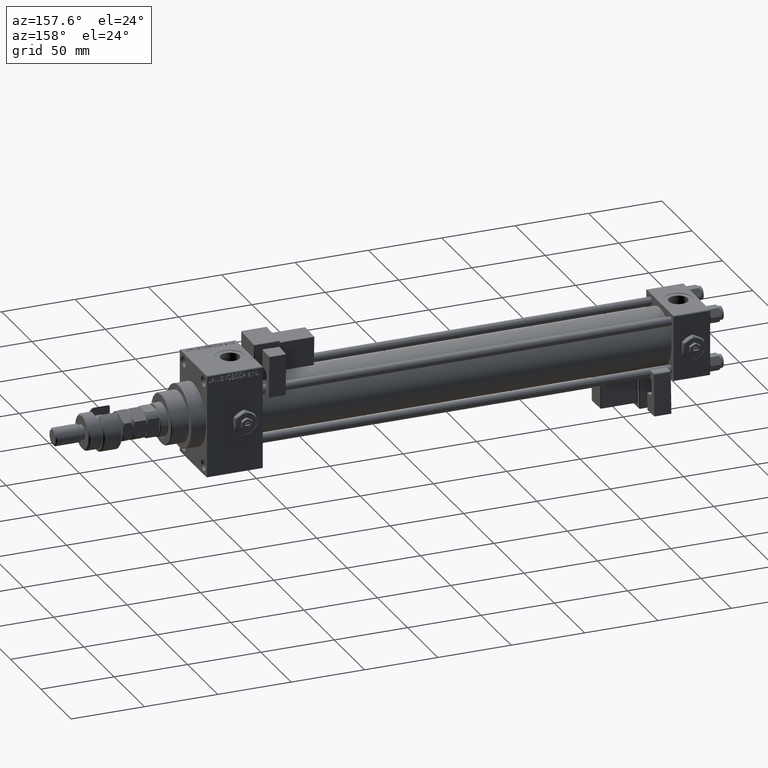
[diagram: clean part render]
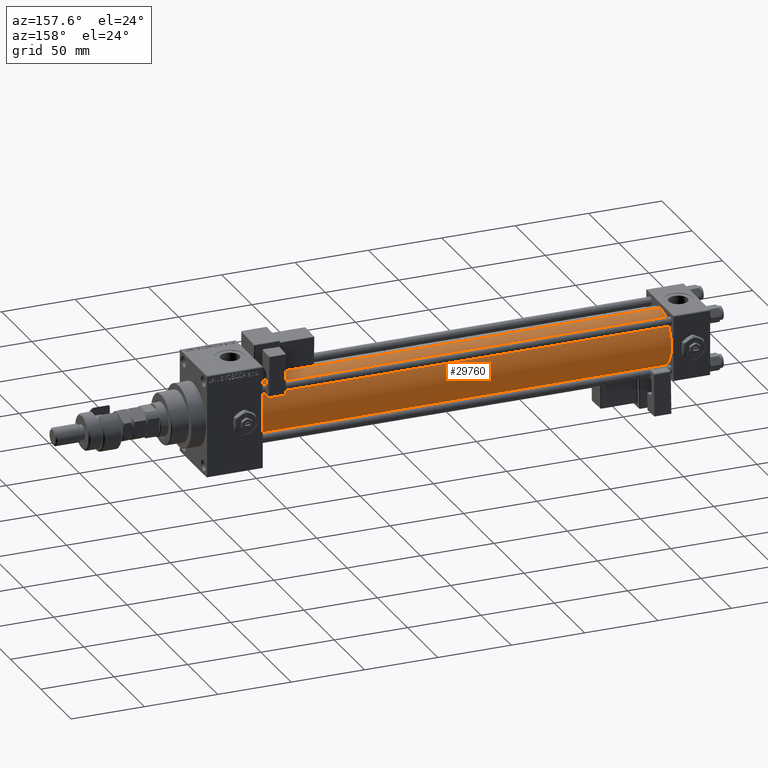
[diagram: same view with one face highlighted and labeled with its STEP entity id]
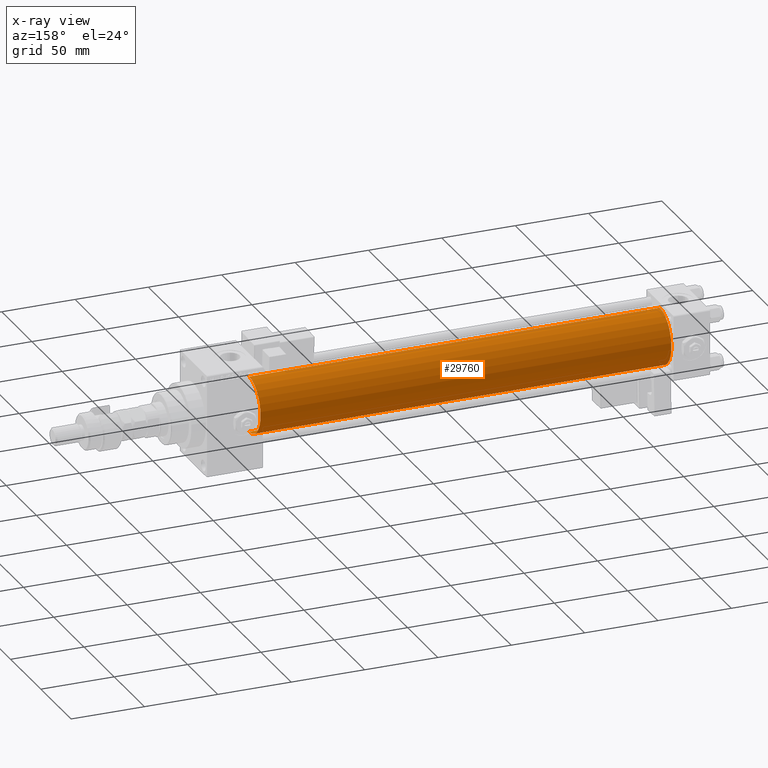
[diagram: x-ray of the same camera — body ghosted, the highlighted face saturated]
A machine part, auxiliary view. The second image highlights one B-rep face of the part: STEP entity #29760.
The next image is the same camera in x-ray: the body ghosted, the highlighted face saturated — about 0% of this face is hidden behind the body in this view.
In plain terms, the highlighted cylindrical surface (edge-blend (fillet) strip) has radius 19 mm, axis along (-1, -0, -0).
Its self-contained STEP definition (entity closure, byte-faithful):
#160 = EDGE_CURVE ( 'NONE', #4835, #32636, #41612, .T. ) ;
#1316 = EDGE_LOOP ( 'NONE', ( #28936, #52557, #18638, #28544 ) ) ;
#2820 = DIRECTION ( 'NONE',  ( 0.000000000000000000, 0.000000000000000000, 1.000000000000000000 ) ) ;
#3035 = CARTESIAN_POINT ( 'NONE',  ( 25.00000000000002132, -2.752562955852396712E-16, -19.00000000000000000 ) ) ;
#3146 = CARTESIAN_POINT ( 'NONE',  ( 305.0000000000000568, -2.752562955852396712E-16, -19.00000000000000000 ) ) ;
#4835 = VERTEX_POINT ( 'NONE', #11828 ) ;
#6826 = AXIS2_PLACEMENT_3D ( 'NONE', #44454, #40346, #2820 ) ;
#9437 = EDGE_CURVE ( 'NONE', #53385, #53187, #20166, .T. ) ;
#11256 = CARTESIAN_POINT ( 'NONE',  ( 305.0000000000000568, -2.602085213965210642E-15, 19.00000000000000000 ) ) ;
#11828 = CARTESIAN_POINT ( 'NONE',  ( 305.0000000000000568, -2.752562955852396712E-16, -19.00000000000000000 ) ) ;
#13861 = VECTOR ( 'NONE', #28745, 1000.000000000000000 ) ;
#15618 = CARTESIAN_POINT ( 'NONE',  ( 305.0000000000000568, -2.602085213965210642E-15, 0.000000000000000000 ) ) ;
#15878 = EDGE_CURVE ( 'NONE', #4835, #53385, #23952, .T. ) ;
#18638 = ORIENTED_EDGE ( 'NONE', *, *, #9437, .T. ) ;
#19527 = FACE_OUTER_BOUND ( 'NONE', #1316, .T. ) ;
#19994 = DIRECTION ( 'NONE',  ( 0.000000000000000000, 0.000000000000000000, -1.000000000000000000 ) ) ;
#20166 = CIRCLE ( 'NONE', #44657, 19.00000000000000000 ) ;
#21768 = CARTESIAN_POINT ( 'NONE',  ( 305.0000000000000568, -2.602085213965210642E-15, 19.00000000000000000 ) ) ;
#22227 = CARTESIAN_POINT ( 'NONE',  ( 25.00000000000002132, -2.602085213965210642E-15, 19.00000000000000000 ) ) ;
#23952 = LINE ( 'NONE', #3146, #28141 ) ;
#27735 = CYLINDRICAL_SURFACE ( 'NONE', #6826, 19.00000000000000000 ) ;
#28141 = VECTOR ( 'NONE', #45318, 1000.000000000000000 ) ;
#28544 = ORIENTED_EDGE ( 'NONE', *, *, #30768, .F. ) ;
#28745 = DIRECTION ( 'NONE',  ( -1.000000000000000000, -0.000000000000000000, -0.000000000000000000 ) ) ;
#28936 = ORIENTED_EDGE ( 'NONE', *, *, #160, .F. ) ;
#29760 = ADVANCED_FACE ( 'NONE', ( #19527 ), #27735, .T. ) ;
#30768 = EDGE_CURVE ( 'NONE', #32636, #53187, #36178, .T. ) ;
#32636 = VERTEX_POINT ( 'NONE', #21768 ) ;
#36178 = LINE ( 'NONE', #11256, #13861 ) ;
#36980 = DIRECTION ( 'NONE',  ( 1.000000000000000000, 0.000000000000000000, 0.000000000000000000 ) ) ;
#37062 = DIRECTION ( 'NONE',  ( 1.000000000000000000, -0.000000000000000000, 0.000000000000000000 ) ) ;
#40346 = DIRECTION ( 'NONE',  ( -1.000000000000000000, -0.000000000000000000, -0.000000000000000000 ) ) ;
#41612 = CIRCLE ( 'NONE', #42474, 19.00000000000000000 ) ;
#42474 = AXIS2_PLACEMENT_3D ( 'NONE', #15618, #36980, #19994 ) ;
#44454 = CARTESIAN_POINT ( 'NONE',  ( 305.0000000000000568, -2.602085213965210642E-15, 0.000000000000000000 ) ) ;
#44657 = AXIS2_PLACEMENT_3D ( 'NONE', #45270, #37062, #49657 ) ;
#45270 = CARTESIAN_POINT ( 'NONE',  ( 25.00000000000002132, -2.602085213965210642E-15, 0.000000000000000000 ) ) ;
#45318 = DIRECTION ( 'NONE',  ( -1.000000000000000000, -0.000000000000000000, -0.000000000000000000 ) ) ;
#49657 = DIRECTION ( 'NONE',  ( 0.000000000000000000, 0.000000000000000000, 1.000000000000000000 ) ) ;
#52557 = ORIENTED_EDGE ( 'NONE', *, *, #15878, .T. ) ;
#53187 = VERTEX_POINT ( 'NONE', #22227 ) ;
#53385 = VERTEX_POINT ( 'NONE', #3035 ) ;